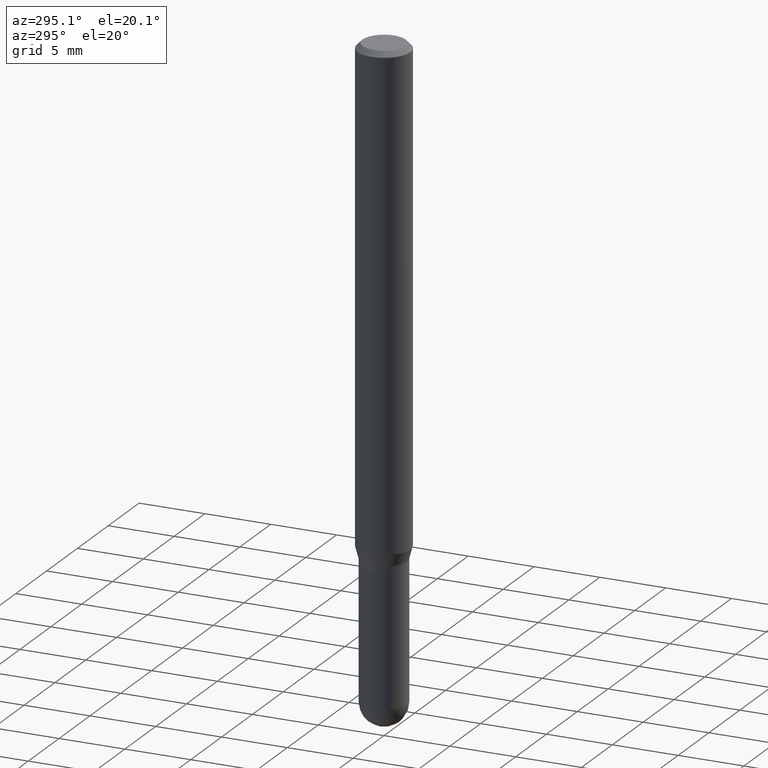
[diagram: clean part render]
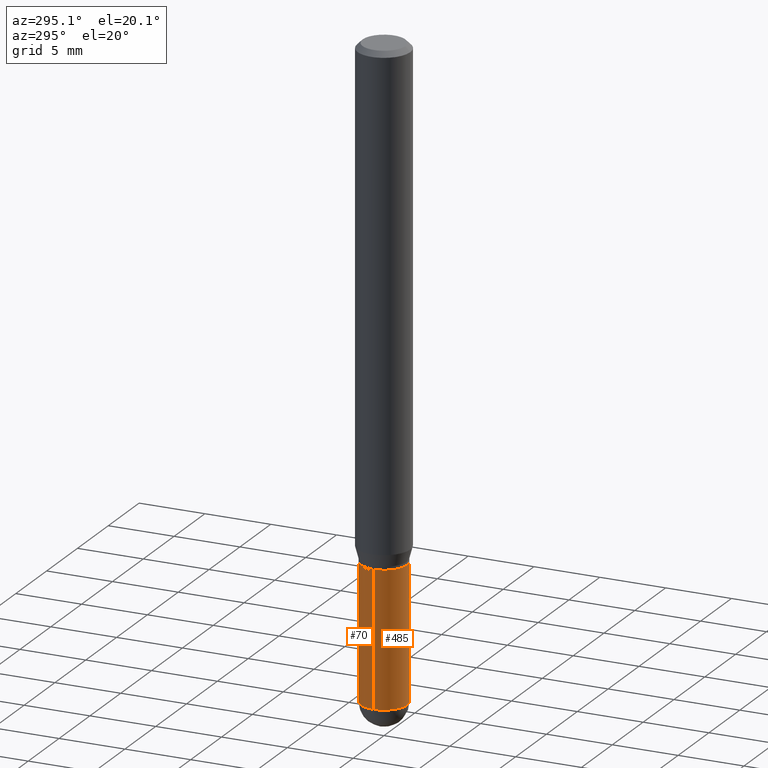
[diagram: same view with one multi-face feature highlighted, each face labeled with its STEP entity id]
A machine part, auxiliary view. The highlighted faces form ONE feature: a constant-radius fillet chain: 2 tangent blend faces with common blend radius 1.7501 mm. The faces share edges in the B-rep.
Their STEP definitions:
[1] entity #70 (Cylinder):
#18 = AXIS2_PLACEMENT_3D ( 'NONE', #239, #192, #351 ) ;
#20 = VERTEX_POINT ( 'NONE', #143 ) ;
#41 = DIRECTION ( 'NONE',  ( -2.445468806185136877E-29, 3.491481338843145188E-15, 1.000000000000000000 ) ) ;
#48 = AXIS2_PLACEMENT_3D ( 'NONE', #447, #168, #450 ) ;
#70 = ADVANCED_FACE ( 'NONE', ( #506 ), #151, .T. ) ;
#80 = CARTESIAN_POINT ( 'NONE',  ( 0.06890000000000007230, -5.704731359535814187E-15, -1.496099999999999985 ) ) ;
#92 = EDGE_CURVE ( 'NONE', #347, #20, #107, .T. ) ;
#93 = CARTESIAN_POINT ( 'NONE',  ( -0.06890000000000007230, 4.895639449387095418E-16, -3.389146277185633520E-30 ) ) ;
#104 = VERTEX_POINT ( 'NONE', #479 ) ;
#107 = CIRCLE ( 'NONE', #385, 0.06890000000000007230 ) ;
#109 = ORIENTED_EDGE ( 'NONE', *, *, #442, .T. ) ;
#110 = ORIENTED_EDGE ( 'NONE', *, *, #403, .T. ) ;
#114 = VERTEX_POINT ( 'NONE', #154 ) ;
#118 = CARTESIAN_POINT ( 'NONE',  ( 0.06890000000000008618, -6.409137719647418882E-15, -1.899600000000000177 ) ) ;
#143 = CARTESIAN_POINT ( 'NONE',  ( -0.06890000000000007230, -5.438447646216124813E-15, -1.496099999999999985 ) ) ;
#151 = CYLINDRICAL_SURFACE ( 'NONE', #18, 0.06890000000000007230 ) ;
#154 = CARTESIAN_POINT ( 'NONE',  ( 4.811261284926304785E-16, 0.06889999999999341096, -1.899600000000000399 ) ) ;
#158 = DIRECTION ( 'NONE',  ( -2.445468806185136597E-29, 3.491481338843145583E-15, 1.000000000000000000 ) ) ;
#160 = EDGE_LOOP ( 'NONE', ( #109, #110, #289, #414, #307 ) ) ;
#167 = VERTEX_POINT ( 'NONE', #118 ) ;
#168 = DIRECTION ( 'NONE',  ( -2.445468806185136597E-29, 3.491481338843145583E-15, 1.000000000000000000 ) ) ;
#183 = CARTESIAN_POINT ( 'NONE',  ( 0.06890000000000007230, -4.811261284925842315E-16, 3.359685798523402771E-30 ) ) ;
#186 = AXIS2_PLACEMENT_3D ( 'NONE', #392, #158, #283 ) ;
#191 = LINE ( 'NONE', #93, #344 ) ;
#192 = DIRECTION ( 'NONE',  ( -2.445468806185136597E-29, 3.491481338843145583E-15, 1.000000000000000000 ) ) ;
#239 = CARTESIAN_POINT ( 'NONE',  ( 0.000000000000000000, 0.000000000000000000, 0.000000000000000000 ) ) ;
#279 = EDGE_CURVE ( 'NONE', #167, #347, #504, .T. ) ;
#280 = DIRECTION ( 'NONE',  ( 1.000000000000000000, -6.982962677686273021E-15, 0.000000000000000000 ) ) ;
#283 = DIRECTION ( 'NONE',  ( 1.000000000000000000, -6.982962677686273021E-15, 0.000000000000000000 ) ) ;
#289 = ORIENTED_EDGE ( 'NONE', *, *, #92, .F. ) ;
#307 = ORIENTED_EDGE ( 'NONE', *, *, #394, .T. ) ;
#322 = CIRCLE ( 'NONE', #186, 0.06890000000000007230 ) ;
#343 = DIRECTION ( 'NONE',  ( -2.445468806185136877E-29, 3.491481338843145188E-15, 1.000000000000000000 ) ) ;
#344 = VECTOR ( 'NONE', #41, 39.37007874015748143 ) ;
#347 = VERTEX_POINT ( 'NONE', #80 ) ;
#351 = DIRECTION ( 'NONE',  ( 1.000000000000000000, -6.982962677686265922E-15, 4.876176775795935232E-29 ) ) ;
#354 = CARTESIAN_POINT ( 'NONE',  ( 3.658665880933582389E-29, -5.223605231043229660E-15, -1.496099999999999985 ) ) ;
#385 = AXIS2_PLACEMENT_3D ( 'NONE', #354, #512, #280 ) ;
#388 = CIRCLE ( 'NONE', #48, 0.06890000000000007230 ) ;
#392 = CARTESIAN_POINT ( 'NONE',  ( 4.645412544229285965E-29, -6.632417951266439838E-15, -1.899600000000000177 ) ) ;
#394 = EDGE_CURVE ( 'NONE', #167, #114, #322, .T. ) ;
#396 = VECTOR ( 'NONE', #343, 39.37007874015748143 ) ;
#403 = EDGE_CURVE ( 'NONE', #104, #20, #191, .T. ) ;
#414 = ORIENTED_EDGE ( 'NONE', *, *, #279, .F. ) ;
#442 = EDGE_CURVE ( 'NONE', #114, #104, #388, .T. ) ;
#447 = CARTESIAN_POINT ( 'NONE',  ( 4.645412544229285965E-29, -6.632417951266439838E-15, -1.899600000000000177 ) ) ;
#450 = DIRECTION ( 'NONE',  ( 1.000000000000000000, -6.982962677686273021E-15, 0.000000000000000000 ) ) ;
#479 = CARTESIAN_POINT ( 'NONE',  ( -0.06890000000000008618, -5.438447646216124813E-15, -1.899600000000000177 ) ) ;
#504 = LINE ( 'NONE', #183, #396 ) ;
#506 = FACE_OUTER_BOUND ( 'NONE', #160, .T. ) ;
#512 = DIRECTION ( 'NONE',  ( -2.445468806185136597E-29, 3.491481338843145583E-15, 1.000000000000000000 ) ) ;
[2] entity #485 (Cylinder):
#6 = DIRECTION ( 'NONE',  ( 1.000000000000000000, -6.982962677686273021E-15, 0.000000000000000000 ) ) ;
#7 = CARTESIAN_POINT ( 'NONE',  ( 4.645412544229285965E-29, -6.632417951266439838E-15, -1.899600000000000177 ) ) ;
#20 = VERTEX_POINT ( 'NONE', #143 ) ;
#25 = ORIENTED_EDGE ( 'NONE', *, *, #279, .T. ) ;
#29 = VERTEX_POINT ( 'NONE', #381 ) ;
#41 = DIRECTION ( 'NONE',  ( -2.445468806185136877E-29, 3.491481338843145188E-15, 1.000000000000000000 ) ) ;
#52 = DIRECTION ( 'NONE',  ( 1.000000000000000000, -6.982962677686273021E-15, 0.000000000000000000 ) ) ;
#54 = DIRECTION ( 'NONE',  ( 1.000000000000000000, -6.982962677686265922E-15, 4.876176775795935232E-29 ) ) ;
#58 = DIRECTION ( 'NONE',  ( -2.445468806185136597E-29, 3.491481338843145583E-15, 1.000000000000000000 ) ) ;
#80 = CARTESIAN_POINT ( 'NONE',  ( 0.06890000000000007230, -5.704731359535814187E-15, -1.496099999999999985 ) ) ;
#86 = DIRECTION ( 'NONE',  ( -2.445468806185136597E-29, 3.491481338843145583E-15, 1.000000000000000000 ) ) ;
#93 = CARTESIAN_POINT ( 'NONE',  ( -0.06890000000000007230, 4.895639449387095418E-16, -3.389146277185633520E-30 ) ) ;
#104 = VERTEX_POINT ( 'NONE', #479 ) ;
#118 = CARTESIAN_POINT ( 'NONE',  ( 0.06890000000000008618, -6.409137719647418882E-15, -1.899600000000000177 ) ) ;
#143 = CARTESIAN_POINT ( 'NONE',  ( -0.06890000000000007230, -5.438447646216124813E-15, -1.496099999999999985 ) ) ;
#149 = ORIENTED_EDGE ( 'NONE', *, *, #384, .F. ) ;
#159 = DIRECTION ( 'NONE',  ( 1.000000000000000000, -6.982962677686273021E-15, 0.000000000000000000 ) ) ;
#164 = EDGE_CURVE ( 'NONE', #29, #167, #218, .T. ) ;
#166 = CIRCLE ( 'NONE', #209, 0.06890000000000007230 ) ;
#167 = VERTEX_POINT ( 'NONE', #118 ) ;
#181 = EDGE_LOOP ( 'NONE', ( #407, #219, #460, #25, #149 ) ) ;
#183 = CARTESIAN_POINT ( 'NONE',  ( 0.06890000000000007230, -4.811261284925842315E-16, 3.359685798523402771E-30 ) ) ;
#187 = CIRCLE ( 'NONE', #415, 0.06890000000000007230 ) ;
#191 = LINE ( 'NONE', #93, #344 ) ;
#201 = CARTESIAN_POINT ( 'NONE',  ( 3.658665880933582389E-29, -5.223605231043229660E-15, -1.496099999999999985 ) ) ;
#208 = EDGE_CURVE ( 'NONE', #104, #29, #166, .T. ) ;
#209 = AXIS2_PLACEMENT_3D ( 'NONE', #401, #58, #52 ) ;
#212 = CARTESIAN_POINT ( 'NONE',  ( 0.000000000000000000, 0.000000000000000000, 0.000000000000000000 ) ) ;
#218 = CIRCLE ( 'NONE', #263, 0.06890000000000007230 ) ;
#219 = ORIENTED_EDGE ( 'NONE', *, *, #208, .T. ) ;
#235 = DIRECTION ( 'NONE',  ( -2.445468806185136597E-29, 3.491481338843145583E-15, 1.000000000000000000 ) ) ;
#257 = FACE_OUTER_BOUND ( 'NONE', #181, .T. ) ;
#263 = AXIS2_PLACEMENT_3D ( 'NONE', #7, #86, #159 ) ;
#279 = EDGE_CURVE ( 'NONE', #167, #347, #504, .T. ) ;
#343 = DIRECTION ( 'NONE',  ( -2.445468806185136877E-29, 3.491481338843145188E-15, 1.000000000000000000 ) ) ;
#344 = VECTOR ( 'NONE', #41, 39.37007874015748143 ) ;
#347 = VERTEX_POINT ( 'NONE', #80 ) ;
#371 = DIRECTION ( 'NONE',  ( -2.445468806185136597E-29, 3.491481338843145583E-15, 1.000000000000000000 ) ) ;
#381 = CARTESIAN_POINT ( 'NONE',  ( -4.895639449386624073E-16, -0.06890000000000662261, -1.899599999999999955 ) ) ;
#384 = EDGE_CURVE ( 'NONE', #20, #347, #187, .T. ) ;
#396 = VECTOR ( 'NONE', #343, 39.37007874015748143 ) ;
#401 = CARTESIAN_POINT ( 'NONE',  ( 4.645412544229285965E-29, -6.632417951266439838E-15, -1.899600000000000177 ) ) ;
#403 = EDGE_CURVE ( 'NONE', #104, #20, #191, .T. ) ;
#407 = ORIENTED_EDGE ( 'NONE', *, *, #403, .F. ) ;
#408 = CYLINDRICAL_SURFACE ( 'NONE', #489, 0.06890000000000007230 ) ;
#415 = AXIS2_PLACEMENT_3D ( 'NONE', #201, #235, #6 ) ;
#460 = ORIENTED_EDGE ( 'NONE', *, *, #164, .T. ) ;
#479 = CARTESIAN_POINT ( 'NONE',  ( -0.06890000000000008618, -5.438447646216124813E-15, -1.899600000000000177 ) ) ;
#485 = ADVANCED_FACE ( 'NONE', ( #257 ), #408, .T. ) ;
#489 = AXIS2_PLACEMENT_3D ( 'NONE', #212, #371, #54 ) ;
#504 = LINE ( 'NONE', #183, #396 ) ;